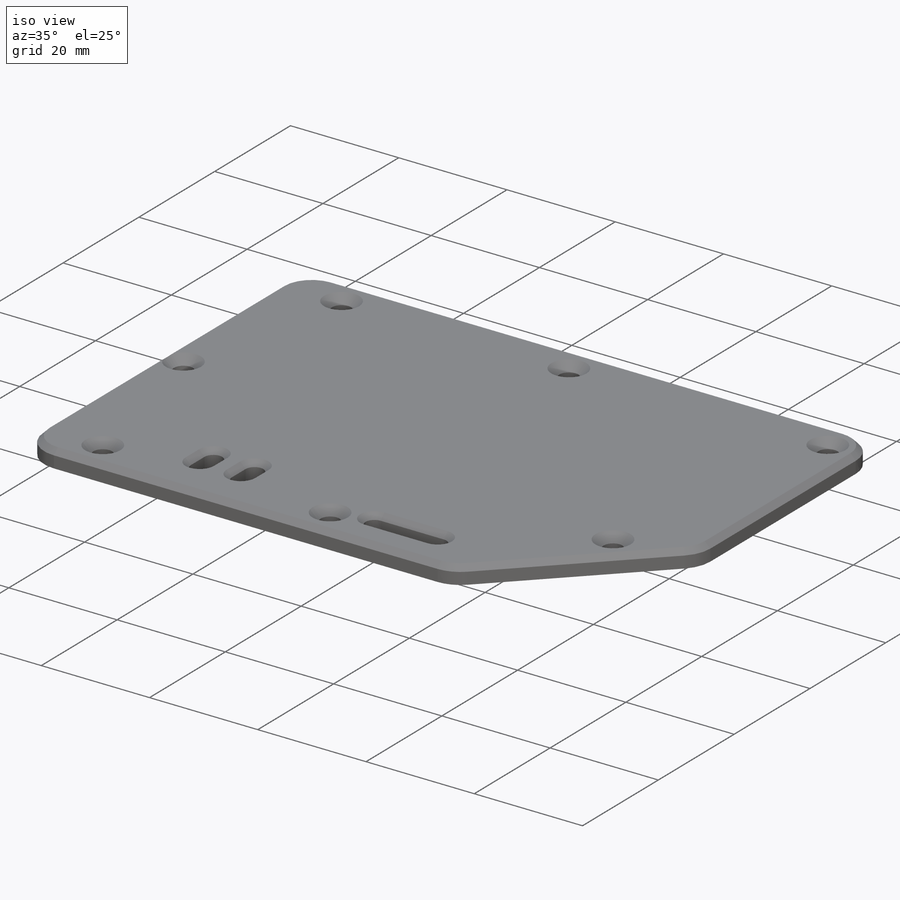
[diagram: iso view]
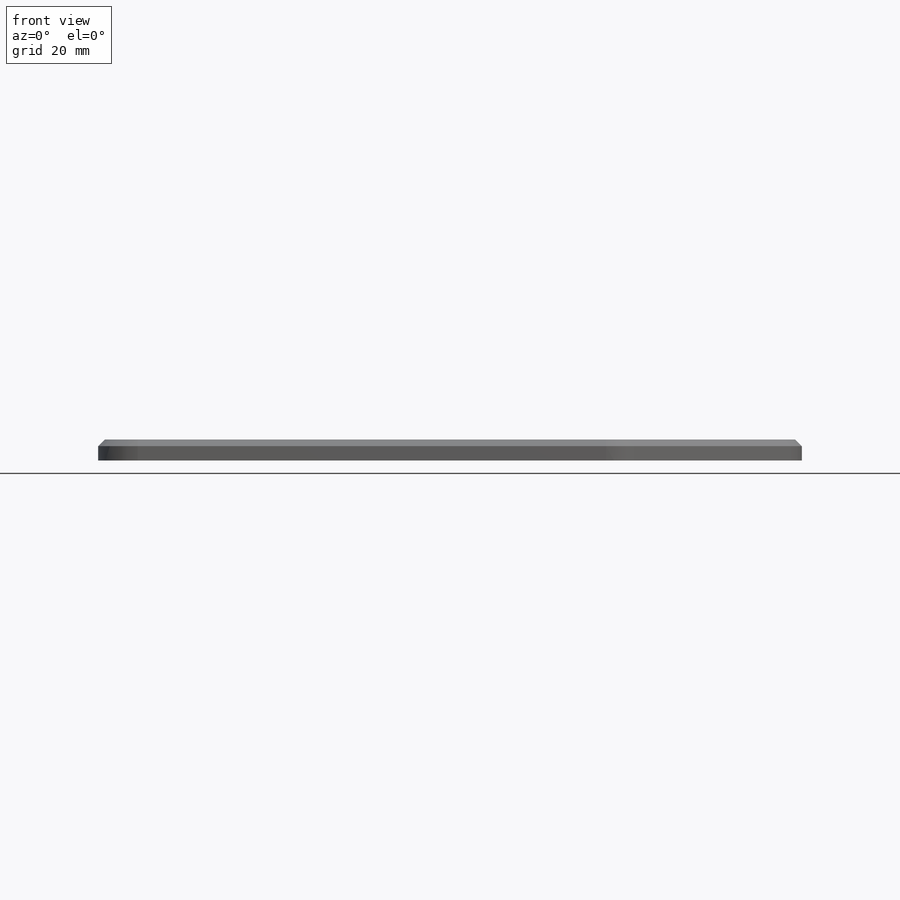
[diagram: front view]
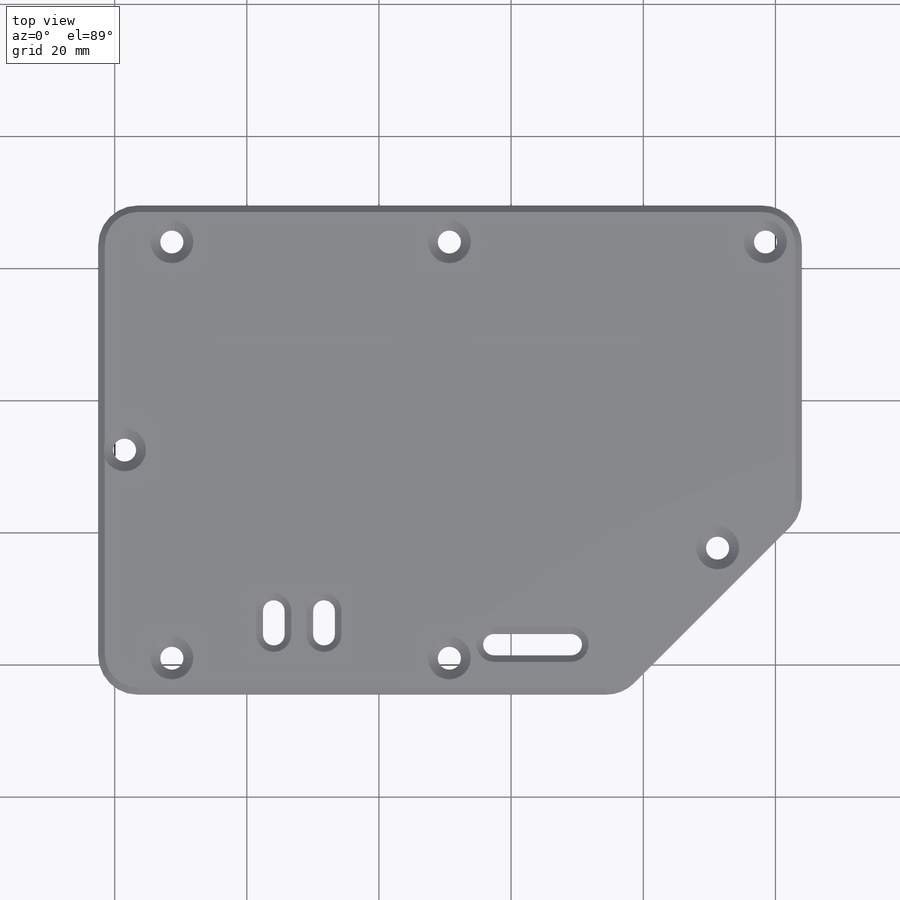
[diagram: top view]
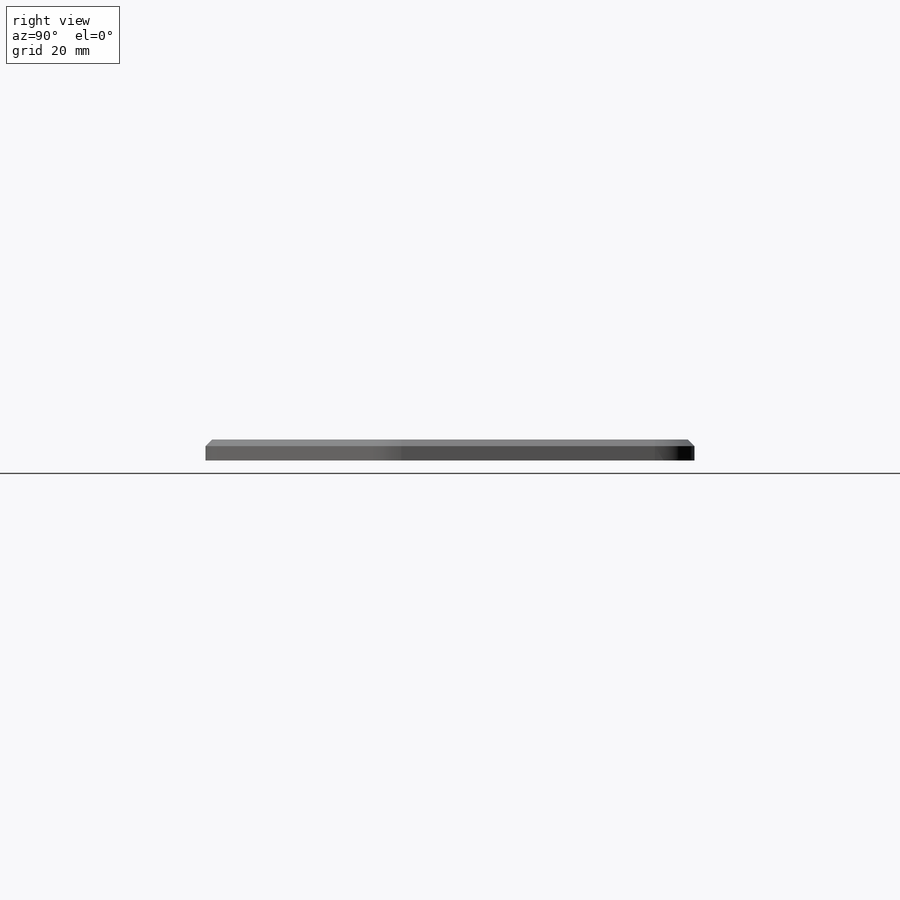
[diagram: right view]
SOLIDWORKS PART (.sldprt)
format: sldprt  version: not decoded by parser v0  size: 231,936 bytes
history: native  units: mm
features: sketch x4, cut_extrude x3, chamfer x2, material x1, extrude x1 (+11 scaffold rows collapsed)
feature tree (22):
  scaffold x11  (default folders/planes/origin — collapsed)
  material  "Material <not specified>"
  sketch  "Sketch1"
  extrude  "Boss-Extrude1"  Depth=3.175mm
  sketch  "Sketch3"  dims[D1=3.5mm]
  cut_extrude  "Cut-Extrude1"  Depth=3.175mm
  sketch  "Sketch4"  dims[D1=3.0mm D2=13.0mm D3=3.275mm]
  cut_extrude  "Cut-Extrude2"  Depth=3.175mm
  sketch  "Sketch5"  dims[D1=3.275mm]
  cut_extrude  "Cut-Extrude3"  Depth=3.175mm
  chamfer  "Chamfer2"  Distance=1mm Angle=45deg
  chamfer  "Chamfer1"  Distance=1.5mm Angle=45deg
decode coverage: 9 of 10 modeling features carry decoded parameters
note: suppression state not decoded; provenance and decode notes live in map.json
